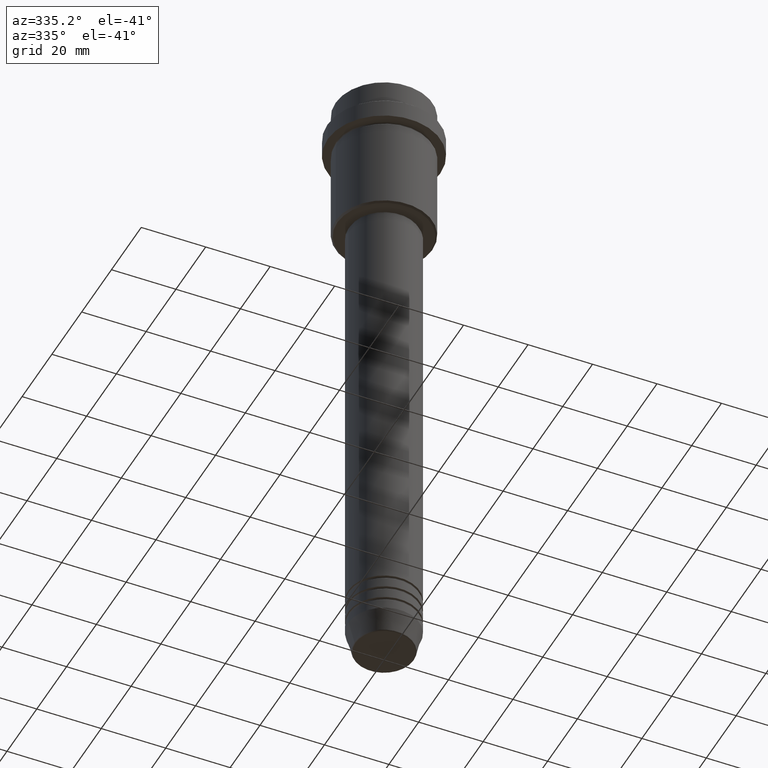
[diagram: clean part render]
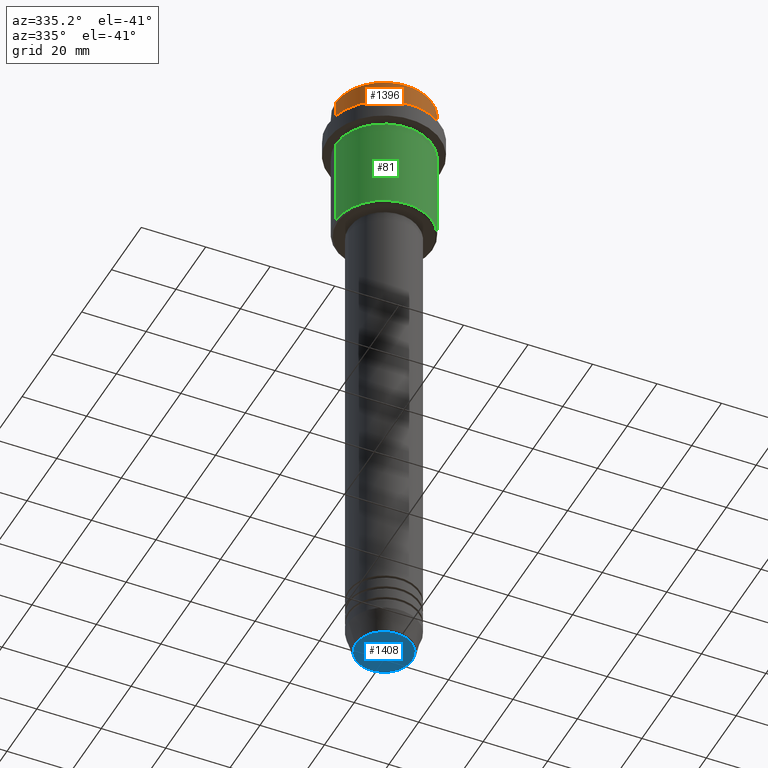
[diagram: same view with three faces highlighted in distinct colors, each labeled with its STEP entity id]
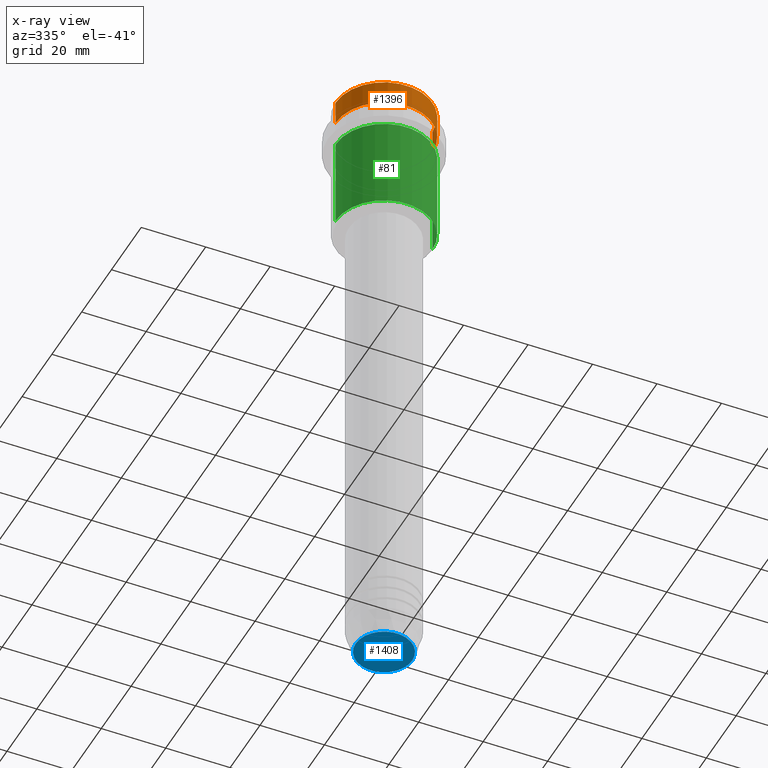
[diagram: x-ray of the same camera — body ghosted, the three highlighted faces saturated]
A machine part, auxiliary view with three faces highlighted in distinct colors.
The next image is the same camera in x-ray (body ghosted, the three faces saturated) — at least one of them is partly hidden behind the body in this view.
Their STEP definitions:

[orange] entity #1396 — the highlighted cylindrical surface (partial cylindrical patch) has radius 15 mm, axis along (-0, -0, 1).
#27 = ORIENTED_EDGE ( 'NONE', *, *, #301, .T. ) ;
#126 = DIRECTION ( 'NONE',  ( 1.000000000000000000, 0.000000000000000000, 0.000000000000000000 ) ) ;
#171 = EDGE_LOOP ( 'NONE', ( #1092, #881, #276, #27 ) ) ;
#179 = DIRECTION ( 'NONE',  ( -0.000000000000000000, -0.000000000000000000, 1.000000000000000000 ) ) ;
#226 = AXIS2_PLACEMENT_3D ( 'NONE', #872, #446, #126 ) ;
#269 = CIRCLE ( 'NONE', #1187, 15.00000000000000000 ) ;
#270 = VECTOR ( 'NONE', #179, 1000.000000000000000 ) ;
#275 = EDGE_CURVE ( 'NONE', #875, #423, #1219, .T. ) ;
#276 = ORIENTED_EDGE ( 'NONE', *, *, #275, .T. ) ;
#301 = EDGE_CURVE ( 'NONE', #423, #1377, #269, .T. ) ;
#340 = VECTOR ( 'NONE', #1261, 1000.000000000000000 ) ;
#351 = VERTEX_POINT ( 'NONE', #1359 ) ;
#371 = CARTESIAN_POINT ( 'NONE',  ( 0.000000000000000000, 0.000000000000000000, -0.5000000000000108802 ) ) ;
#406 = FACE_OUTER_BOUND ( 'NONE', #171, .T. ) ;
#423 = VERTEX_POINT ( 'NONE', #924 ) ;
#446 = DIRECTION ( 'NONE',  ( -0.000000000000000000, -0.000000000000000000, 1.000000000000000000 ) ) ;
#562 = CARTESIAN_POINT ( 'NONE',  ( 15.00000000000000000, 0.000000000000000000, -7.999999999999998224 ) ) ;
#580 = EDGE_CURVE ( 'NONE', #351, #875, #708, .T. ) ;
#625 = CARTESIAN_POINT ( 'NONE',  ( -15.00000000000000000, 1.836970198721029589E-15, 0.000000000000000000 ) ) ;
#708 = CIRCLE ( 'NONE', #226, 15.00000000000000000 ) ;
#712 = DIRECTION ( 'NONE',  ( -0.000000000000000000, -0.000000000000000000, 1.000000000000000000 ) ) ;
#716 = DIRECTION ( 'NONE',  ( 0.000000000000000000, 0.000000000000000000, -1.000000000000000000 ) ) ;
#823 = LINE ( 'NONE', #625, #270 ) ;
#845 = DIRECTION ( 'NONE',  ( 1.000000000000000000, 0.000000000000000000, 0.000000000000000000 ) ) ;
#872 = CARTESIAN_POINT ( 'NONE',  ( 0.000000000000000000, 0.000000000000000000, -7.999999999999998224 ) ) ;
#875 = VERTEX_POINT ( 'NONE', #562 ) ;
#881 = ORIENTED_EDGE ( 'NONE', *, *, #580, .T. ) ;
#924 = CARTESIAN_POINT ( 'NONE',  ( 15.00000000000000000, 0.000000000000000000, -0.5000000000000108802 ) ) ;
#1030 = AXIS2_PLACEMENT_3D ( 'NONE', #1255, #712, #845 ) ;
#1049 = CYLINDRICAL_SURFACE ( 'NONE', #1030, 15.00000000000000000 ) ;
#1092 = ORIENTED_EDGE ( 'NONE', *, *, #1402, .F. ) ;
#1187 = AXIS2_PLACEMENT_3D ( 'NONE', #371, #716, #1241 ) ;
#1219 = LINE ( 'NONE', #1353, #340 ) ;
#1241 = DIRECTION ( 'NONE',  ( 1.000000000000000000, 0.000000000000000000, 0.000000000000000000 ) ) ;
#1255 = CARTESIAN_POINT ( 'NONE',  ( 0.000000000000000000, 0.000000000000000000, 0.000000000000000000 ) ) ;
#1261 = DIRECTION ( 'NONE',  ( -0.000000000000000000, -0.000000000000000000, 1.000000000000000000 ) ) ;
#1353 = CARTESIAN_POINT ( 'NONE',  ( 15.00000000000000000, 0.000000000000000000, 0.000000000000000000 ) ) ;
#1359 = CARTESIAN_POINT ( 'NONE',  ( -15.00000000000000000, 1.836970198721029589E-15, -7.999999999999998224 ) ) ;
#1377 = VERTEX_POINT ( 'NONE', #1388 ) ;
#1388 = CARTESIAN_POINT ( 'NONE',  ( -15.00000000000000000, 1.836970198721029589E-15, -0.5000000000000108802 ) ) ;
#1396 = ADVANCED_FACE ( 'NONE', ( #406 ), #1049, .T. ) ;
#1402 = EDGE_CURVE ( 'NONE', #351, #1377, #823, .T. ) ;

[blue] entity #1408 — the highlighted planar face has unit normal (0, -0, 1).
#215 = DIRECTION ( 'NONE',  ( 0.000000000000000000, 0.000000000000000000, -1.000000000000000000 ) ) ;
#234 = ORIENTED_EDGE ( 'NONE', *, *, #619, .T. ) ;
#247 = DIRECTION ( 'NONE',  ( 1.000000000000000000, 0.000000000000000000, 0.000000000000000000 ) ) ;
#400 = DIRECTION ( 'NONE',  ( 0.000000000000000000, -0.000000000000000000, 1.000000000000000000 ) ) ;
#439 = CARTESIAN_POINT ( 'NONE',  ( 0.000000000000000000, 0.000000000000000000, -200.0000000000000000 ) ) ;
#527 = AXIS2_PLACEMENT_3D ( 'NONE', #922, #1023, #247 ) ;
#556 = DIRECTION ( 'NONE',  ( 1.000000000000000000, 0.000000000000000000, 0.000000000000000000 ) ) ;
#612 = PLANE ( 'NONE',  #982 ) ;
#619 = EDGE_CURVE ( 'NONE', #621, #883, #843, .T. ) ;
#621 = VERTEX_POINT ( 'NONE', #1088 ) ;
#740 = CARTESIAN_POINT ( 'NONE',  ( 0.000000000000000000, 0.000000000000000000, -200.0000000000000000 ) ) ;
#777 = EDGE_CURVE ( 'NONE', #883, #621, #1102, .T. ) ;
#835 = DIRECTION ( 'NONE',  ( 1.000000000000000000, 0.000000000000000000, 0.000000000000000000 ) ) ;
#843 = CIRCLE ( 'NONE', #1032, 8.740692158992656502 ) ;
#883 = VERTEX_POINT ( 'NONE', #1238 ) ;
#922 = CARTESIAN_POINT ( 'NONE',  ( 0.000000000000000000, 0.000000000000000000, -200.0000000000000000 ) ) ;
#946 = FACE_OUTER_BOUND ( 'NONE', #1214, .T. ) ;
#982 = AXIS2_PLACEMENT_3D ( 'NONE', #740, #400, #835 ) ;
#988 = ORIENTED_EDGE ( 'NONE', *, *, #777, .T. ) ;
#1023 = DIRECTION ( 'NONE',  ( 0.000000000000000000, 0.000000000000000000, -1.000000000000000000 ) ) ;
#1032 = AXIS2_PLACEMENT_3D ( 'NONE', #439, #215, #556 ) ;
#1088 = CARTESIAN_POINT ( 'NONE',  ( 8.740692158992656502, 0.000000000000000000, -200.0000000000000000 ) ) ;
#1102 = CIRCLE ( 'NONE', #527, 8.740692158992656502 ) ;
#1214 = EDGE_LOOP ( 'NONE', ( #234, #988 ) ) ;
#1238 = CARTESIAN_POINT ( 'NONE',  ( -8.740692158992656502, 1.099999016768739653E-15, -200.0000000000000000 ) ) ;
#1408 = ADVANCED_FACE ( 'NONE', ( #946 ), #612, .F. ) ;

[green] entity #81 — the highlighted cylindrical surface (partial cylindrical patch) has radius 15 mm, axis along (-0, -0, 1).
#38 = ORIENTED_EDGE ( 'NONE', *, *, #316, .T. ) ;
#68 = CIRCLE ( 'NONE', #249, 15.00000000000000178 ) ;
#81 = ADVANCED_FACE ( 'NONE', ( #290 ), #939, .T. ) ;
#146 = ORIENTED_EDGE ( 'NONE', *, *, #530, .F. ) ;
#164 = LINE ( 'NONE', #686, #1055 ) ;
#198 = LINE ( 'NONE', #855, #384 ) ;
#235 = DIRECTION ( 'NONE',  ( -0.000000000000000000, -0.000000000000000000, 1.000000000000000000 ) ) ;
#249 = AXIS2_PLACEMENT_3D ( 'NONE', #1069, #513, #1362 ) ;
#290 = FACE_OUTER_BOUND ( 'NONE', #1306, .T. ) ;
#316 = EDGE_CURVE ( 'NONE', #479, #998, #164, .T. ) ;
#339 = CARTESIAN_POINT ( 'NONE',  ( 0.000000000000000000, 0.000000000000000000, -44.50000000000000711 ) ) ;
#343 = CIRCLE ( 'NONE', #1148, 15.00000000000000000 ) ;
#353 = VERTEX_POINT ( 'NONE', #376 ) ;
#376 = CARTESIAN_POINT ( 'NONE',  ( -15.00000000000000355, 1.836970198721029983E-15, -16.00000000000000000 ) ) ;
#384 = VECTOR ( 'NONE', #1380, 1000.000000000000000 ) ;
#393 = DIRECTION ( 'NONE',  ( -0.000000000000000000, -0.000000000000000000, 1.000000000000000000 ) ) ;
#401 = VERTEX_POINT ( 'NONE', #1139 ) ;
#418 = CARTESIAN_POINT ( 'NONE',  ( 15.00000000000000178, 0.000000000000000000, -16.00000000000000000 ) ) ;
#466 = DIRECTION ( 'NONE',  ( -0.000000000000000000, -0.000000000000000000, 1.000000000000000000 ) ) ;
#479 = VERTEX_POINT ( 'NONE', #968 ) ;
#513 = DIRECTION ( 'NONE',  ( -0.000000000000000000, -0.000000000000000000, 1.000000000000000000 ) ) ;
#530 = EDGE_CURVE ( 'NONE', #401, #353, #198, .T. ) ;
#588 = AXIS2_PLACEMENT_3D ( 'NONE', #1374, #393, #925 ) ;
#596 = EDGE_CURVE ( 'NONE', #401, #479, #343, .T. ) ;
#686 = CARTESIAN_POINT ( 'NONE',  ( 15.00000000000000000, 0.000000000000000000, 0.000000000000000000 ) ) ;
#855 = CARTESIAN_POINT ( 'NONE',  ( -15.00000000000000000, 1.836970198721029589E-15, 0.000000000000000000 ) ) ;
#925 = DIRECTION ( 'NONE',  ( 1.000000000000000000, 0.000000000000000000, 0.000000000000000000 ) ) ;
#939 = CYLINDRICAL_SURFACE ( 'NONE', #588, 15.00000000000000000 ) ;
#953 = ORIENTED_EDGE ( 'NONE', *, *, #596, .T. ) ;
#968 = CARTESIAN_POINT ( 'NONE',  ( 15.00000000000000000, 0.000000000000000000, -44.50000000000000711 ) ) ;
#998 = VERTEX_POINT ( 'NONE', #418 ) ;
#1055 = VECTOR ( 'NONE', #466, 1000.000000000000000 ) ;
#1069 = CARTESIAN_POINT ( 'NONE',  ( 0.000000000000000000, 0.000000000000000000, -16.00000000000000000 ) ) ;
#1099 = ORIENTED_EDGE ( 'NONE', *, *, #1360, .F. ) ;
#1139 = CARTESIAN_POINT ( 'NONE',  ( -15.00000000000000000, 1.836970198721029589E-15, -44.50000000000000711 ) ) ;
#1148 = AXIS2_PLACEMENT_3D ( 'NONE', #339, #235, #1218 ) ;
#1218 = DIRECTION ( 'NONE',  ( -1.000000000000000000, 0.000000000000000000, 0.000000000000000000 ) ) ;
#1306 = EDGE_LOOP ( 'NONE', ( #146, #953, #38, #1099 ) ) ;
#1360 = EDGE_CURVE ( 'NONE', #353, #998, #68, .T. ) ;
#1362 = DIRECTION ( 'NONE',  ( 1.000000000000000000, 0.000000000000000000, 0.000000000000000000 ) ) ;
#1374 = CARTESIAN_POINT ( 'NONE',  ( 0.000000000000000000, 0.000000000000000000, 0.000000000000000000 ) ) ;
#1380 = DIRECTION ( 'NONE',  ( -0.000000000000000000, -0.000000000000000000, 1.000000000000000000 ) ) ;